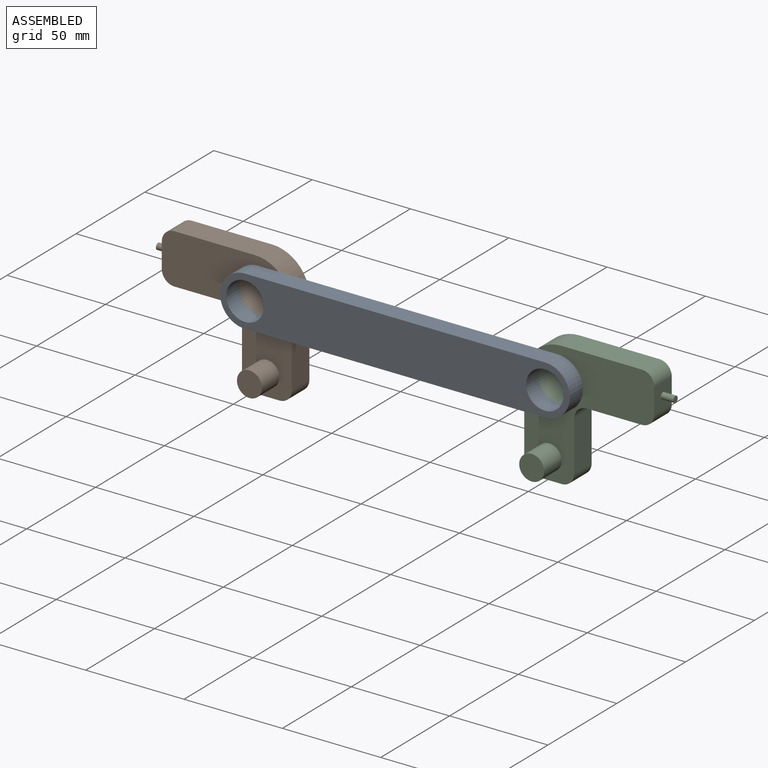
[diagram: assembled view]
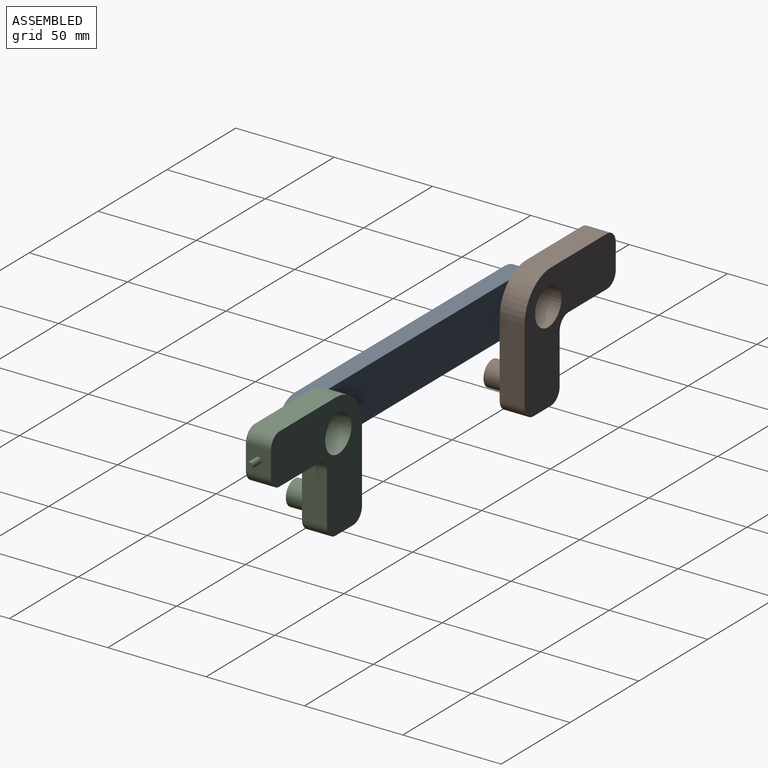
[diagram: assembled view, second angle]
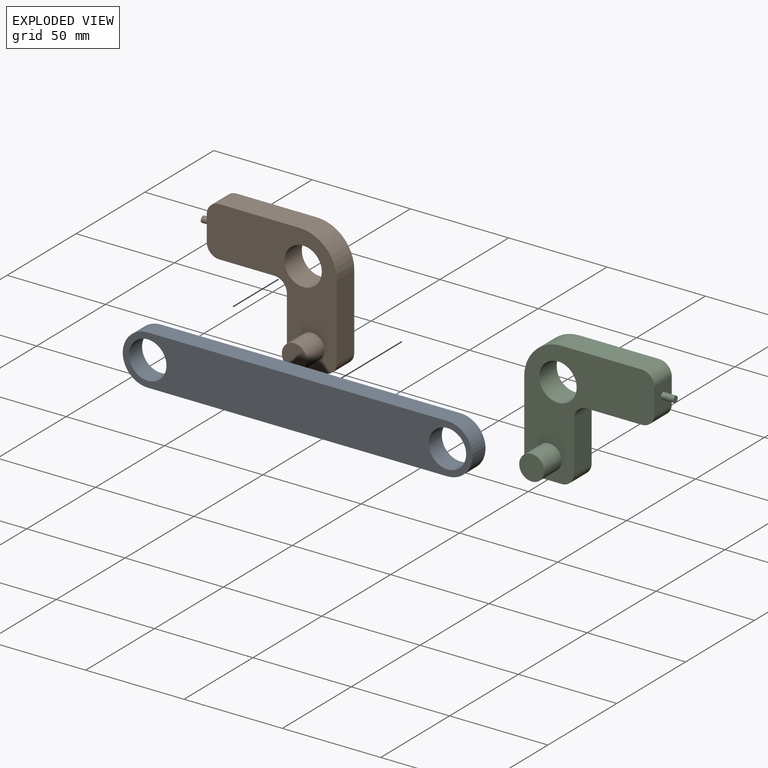
[diagram: exploded view]
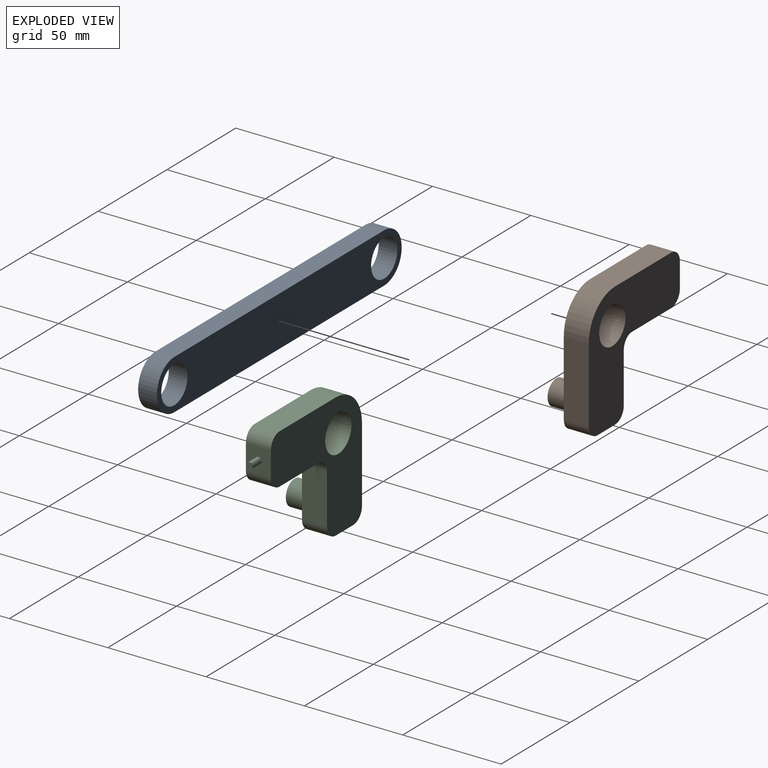
[diagram: exploded view, second angle]
ASSEMBLY  parts=3 mates=2
PART A: 8 faces, bbox 177.8x9.5x25.4 mm
  f0: plane 152.4x9.53mm, normal (0,0,1), area 1451.6mm2, adj f1,f5,f6,f7
  f1: cylinder r=12.7mm len=25.4mm, axis (0,1,0), area 380mm2, adj f0,f2,f6,f7
  f2: plane 152.4x9.53mm, normal (0,0,-1), area 1451.6mm2, adj f1,f5,f6,f7
  f3: cylinder r=9.53mm len=19.05mm, axis (0,1,0), area 570mm2, adj f6,f7
  f4: cylinder r=9.53mm len=19.05mm, axis (0,1,0), area 570mm2, adj f6,f7
  f5: cylinder r=12.7mm len=25.4mm, axis (0,1,0), area 380mm2, adj f0,f2,f6,f7
  f6: plane 177.8x25.4mm, normal (0,-1,0), area 3807.6mm2, adj f0,f1,f2,f3,f4,f5
  f7: plane 177.8x25.4mm, normal (0,1,0), area 3807.6mm2, adj f0,f1,f2,f3,f4,f5
PART B: 19 faces, bbox 72.5x25.4x63.5 mm
  f0: plane 12.7x12.7mm, normal (-1,0,0), area 153.4mm2, adj f1,f12,f13,f14,f17
  f1: cylinder r=6.35mm len=12.7mm, axis (0,1,0), area 126.7mm2, adj f0,f2,f13,f14
  f2: plane 28.05x12.7mm, normal (0,0,-1), area 356.2mm2, adj f1,f3,f13,f14
  f3: cylinder r=6.35mm len=12.7mm, axis (0,1,0), area 126.7mm2, adj f2,f4,f13,f14
  f4: plane 25.4x12.7mm, normal (-1,0,0), area 322.6mm2, adj f3,f5,f13,f14
  f5: cylinder r=6.35mm len=12.7mm, axis (0,1,0), area 126.7mm2, adj f4,f6,f13,f14
  f6: plane 12.7x12.7mm, normal (0,0,-1), area 161.3mm2, adj f5,f7,f13,f14
  f7: cylinder r=6.35mm len=12.7mm, axis (0,1,0), area 126.7mm2, adj f6,f8,f13,f14
  f8: plane 38.1x12.7mm, normal (1,0,0), area 483.9mm2, adj f7,f9,f13,f14
  f9: cylinder r=19.05mm len=19.05mm, axis (0,1,0), area 380mm2, adj f8,f10,f13,f14
  f10: plane 40.75x12.7mm, normal (0,0,1), area 517.5mm2, adj f9,f12,f13,f14
  f11: cylinder r=9.53mm len=19.05mm, axis (0,1,0), area 760.1mm2, adj f13,f14
  f12: cylinder r=6.35mm len=12.7mm, axis (0,1,0), area 126.7mm2, adj f0,f10,f13,f14
  f13: plane 66.15x63.5mm, normal (0,-1,0), area 2132.4mm2, adj f0,f1,f2,f3,f4,f5,f6,f7
  f14: plane 66.15x63.5mm, normal (0,1,0), area 2259.1mm2, adj f0,f1,f2,f3,f4,f5,f6,f7
  f15: cylinder r=6.35mm len=12.7mm, axis (0,1,0), area 506.7mm2, adj f13,f16
  f16: plane 12.7x12.7mm, normal (0,-1,0), area 126.7mm2, adj f15
  f17: cylinder r=1.59mm len=6.35mm, axis (1,0,0), area 63.3mm2, adj f0,f18
  f18: plane 3.18x3.18mm, normal (-1,0,0), area 7.9mm2, adj f17
PART C: 19 faces, bbox 72.5x25.4x63.5 mm
  f0: plane 12.7x12.7mm, normal (-1,0,0), area 153.4mm2, adj f1,f12,f13,f14,f17
  f1: cylinder r=6.35mm len=12.7mm, axis (0,1,0), area 126.7mm2, adj f0,f2,f13,f14
  f2: plane 28.05x12.7mm, normal (0,0,-1), area 356.2mm2, adj f1,f3,f13,f14
  f3: cylinder r=6.35mm len=12.7mm, axis (0,1,0), area 126.7mm2, adj f2,f4,f13,f14
  f4: plane 25.4x12.7mm, normal (-1,0,0), area 322.6mm2, adj f3,f5,f13,f14
  f5: cylinder r=6.35mm len=12.7mm, axis (0,1,0), area 126.7mm2, adj f4,f6,f13,f14
  f6: plane 12.7x12.7mm, normal (0,0,-1), area 161.3mm2, adj f5,f7,f13,f14
  f7: cylinder r=6.35mm len=12.7mm, axis (0,1,0), area 126.7mm2, adj f6,f8,f13,f14
  f8: plane 38.1x12.7mm, normal (1,0,0), area 483.9mm2, adj f7,f9,f13,f14
  f9: cylinder r=19.05mm len=19.05mm, axis (0,1,0), area 380mm2, adj f8,f10,f13,f14
  f10: plane 40.75x12.7mm, normal (0,0,1), area 517.5mm2, adj f9,f12,f13,f14
  f11: cylinder r=9.53mm len=19.05mm, axis (0,1,0), area 760.1mm2, adj f13,f14
  f12: cylinder r=6.35mm len=12.7mm, axis (0,1,0), area 126.7mm2, adj f0,f10,f13,f14
  f13: plane 66.15x63.5mm, normal (0,-1,0), area 2259.1mm2, adj f0,f1,f2,f3,f4,f5,f6,f7
  f14: plane 66.15x63.5mm, normal (0,1,0), area 2132.4mm2, adj f0,f1,f2,f3,f4,f5,f6,f7
  f15: cylinder r=6.35mm len=12.7mm, axis (0,-1,0), area 506.7mm2, adj f14,f16
  f16: plane 12.7x12.7mm, normal (0,1,0), area 126.7mm2, adj f15
  f17: cylinder r=1.59mm len=6.35mm, axis (1,0,0), area 63.3mm2, adj f0,f18
  f18: plane 3.18x3.18mm, normal (-1,0,0), area 7.9mm2, adj f17
PLACE A t=(-15.88,6.77,5.19)mm
PLACE B t=(-100.34,19.47,-4.91)mm
PLACE C rot(axis=(0,0,-1),180deg) t=(68.57,6.77,-4.91)mm
MATE cylindrical C.f11 <-> A.f4  axis (0,-1,0) through (60.32,6.77,17.89)mm
MATE cylindrical B.f11 <-> A.f1  axis (0,-1,0) through (-92.08,6.77,17.89)mm
